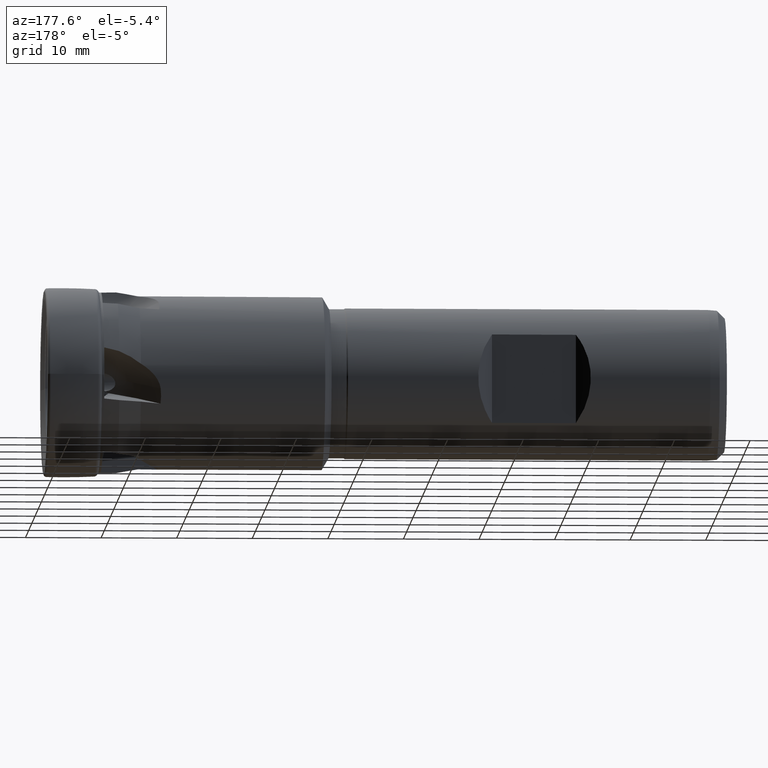
[diagram: clean part render]
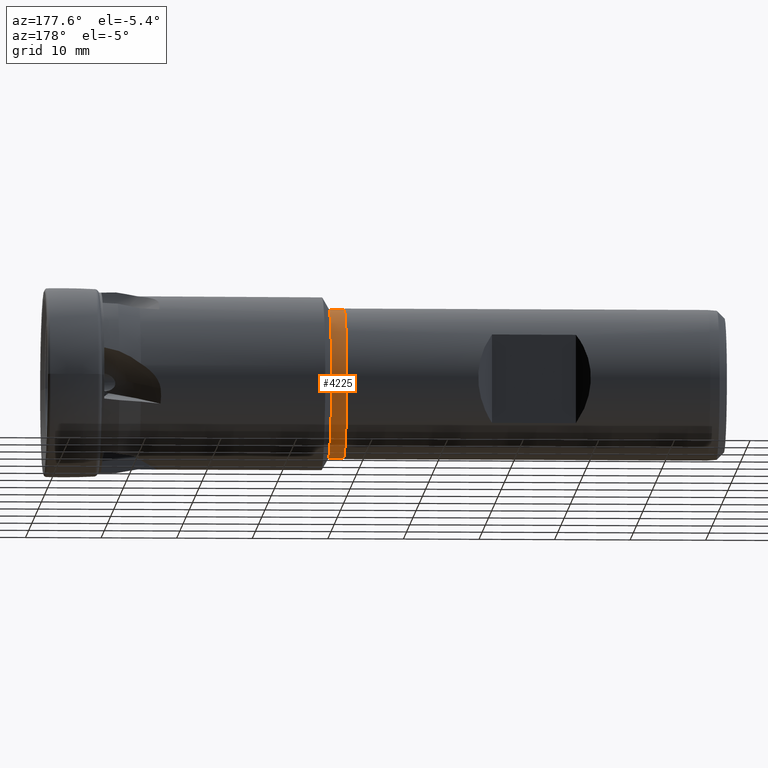
[diagram: same view with one face highlighted and labeled with its STEP entity id]
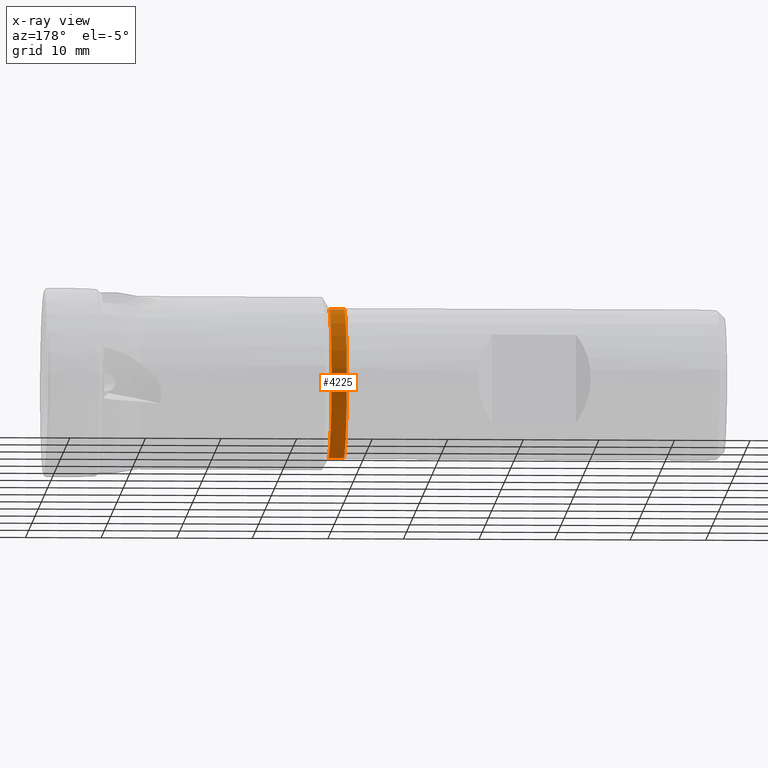
[diagram: x-ray of the same camera — body ghosted, the highlighted face saturated]
A machine part, auxiliary view. The second image highlights one B-rep face of the part: STEP entity #4225.
The next image is the same camera in x-ray: the body ghosted, the highlighted face saturated — about 0% of this face is hidden behind the body in this view.
In plain terms, the highlighted cylindrical surface (partial cylindrical patch) has radius 9.9 mm, axis along (1, -0, -0).
Its self-contained STEP definition (entity closure, byte-faithful):
#593 = EDGE_CURVE ( 'NONE', #5116, #4690, #4293, .T. ) ;
#596 = EDGE_CURVE ( 'NONE', #4690, #5143, #3219, .T. ) ;
#597 = EDGE_CURVE ( 'NONE', #5107, #5143, #4300, .T. ) ;
#598 = EDGE_CURVE ( 'NONE', #5116, #5107, #3232, .T. ) ;
#798 = AXIS2_PLACEMENT_3D ( 'NONE', #1386, #1383, #1388 ) ;
#1383 = DIRECTION ( 'NONE',  ( 1.000000000000000000, -0.0000000000000000000, -0.0000000000000000000 ) ) ;
#1384 = CYLINDRICAL_SURFACE ( 'NONE', #798, 9.899999999999995000 ) ;
#1385 = FACE_OUTER_BOUND ( 'NONE', #5075, .T. ) ;
#1386 = CARTESIAN_POINT ( 'NONE',  ( 0.0000000000000000000, 0.0000000000000000000, 0.0000000000000000000 ) ) ;
#1388 = DIRECTION ( 'NONE',  ( 0.0000000000000000000, 0.0000000000000000000, -1.000000000000000000 ) ) ;
#1790 = CARTESIAN_POINT ( 'NONE',  ( -39.15358983848622600, 1.212400331155879100E-015, 9.899999999999995000 ) ) ;
#1884 = CARTESIAN_POINT ( 'NONE',  ( -37.15358983848622600, 0.0000000000000000000, -9.899999999999995000 ) ) ;
#1901 = CARTESIAN_POINT ( 'NONE',  ( -39.15358983848622600, 0.0000000000000000000, -9.899999999999995000 ) ) ;
#1927 = CARTESIAN_POINT ( 'NONE',  ( -37.15358983848622600, 1.308535104888946600E-015, 9.899999999999995000 ) ) ;
#2442 = ORIENTED_EDGE ( 'NONE', *, *, #598, .F. ) ;
#2443 = ORIENTED_EDGE ( 'NONE', *, *, #593, .T. ) ;
#2445 = ORIENTED_EDGE ( 'NONE', *, *, #596, .T. ) ;
#2449 = ORIENTED_EDGE ( 'NONE', *, *, #597, .F. ) ;
#3219 = LINE ( 'NONE', #3229, #4298 ) ;
#3222 = CARTESIAN_POINT ( 'NONE',  ( -39.15358983848622600, 0.0000000000000000000, 0.0000000000000000000 ) ) ;
#3223 = DIRECTION ( 'NONE',  ( 1.000000000000000000, -0.0000000000000000000, -0.0000000000000000000 ) ) ;
#3224 = DIRECTION ( 'NONE',  ( 0.0000000000000000000, 0.0000000000000000000, -1.000000000000000000 ) ) ;
#3227 = CARTESIAN_POINT ( 'NONE',  ( 0.0000000000000000000, 0.0000000000000000000, -9.899999999999995000 ) ) ;
#3229 = CARTESIAN_POINT ( 'NONE',  ( 0.0000000000000000000, 1.212400331155879100E-015, 9.899999999999995000 ) ) ;
#3230 = DIRECTION ( 'NONE',  ( 1.000000000000000000, -0.0000000000000000000, -0.0000000000000000000 ) ) ;
#3232 = LINE ( 'NONE', #3227, #4299 ) ;
#3233 = CARTESIAN_POINT ( 'NONE',  ( -37.15358983848622600, 0.0000000000000000000, 0.0000000000000000000 ) ) ;
#3234 = DIRECTION ( 'NONE',  ( 1.000000000000000000, -0.0000000000000000000, -0.0000000000000000000 ) ) ;
#3235 = DIRECTION ( 'NONE',  ( 0.0000000000000000000, 0.0000000000000000000, -1.000000000000000000 ) ) ;
#3237 = DIRECTION ( 'NONE',  ( 1.000000000000000000, -0.0000000000000000000, -0.0000000000000000000 ) ) ;
#4225 = ADVANCED_FACE ( 'NONE', ( #1385 ), #1384, .T. ) ;
#4293 = CIRCLE ( 'NONE', #4297, 9.899999999999995000 ) ;
#4297 = AXIS2_PLACEMENT_3D ( 'NONE', #3222, #3223, #3224 ) ;
#4298 = VECTOR ( 'NONE', #3230, 1000.000000000000000 ) ;
#4299 = VECTOR ( 'NONE', #3237, 1000.000000000000000 ) ;
#4300 = CIRCLE ( 'NONE', #4302, 9.899999999999995000 ) ;
#4302 = AXIS2_PLACEMENT_3D ( 'NONE', #3233, #3234, #3235 ) ;
#4690 = VERTEX_POINT ( 'NONE', #1790 ) ;
#5075 = EDGE_LOOP ( 'NONE', ( #2443, #2445, #2449, #2442 ) ) ;
#5107 = VERTEX_POINT ( 'NONE', #1884 ) ;
#5116 = VERTEX_POINT ( 'NONE', #1901 ) ;
#5143 = VERTEX_POINT ( 'NONE', #1927 ) ;